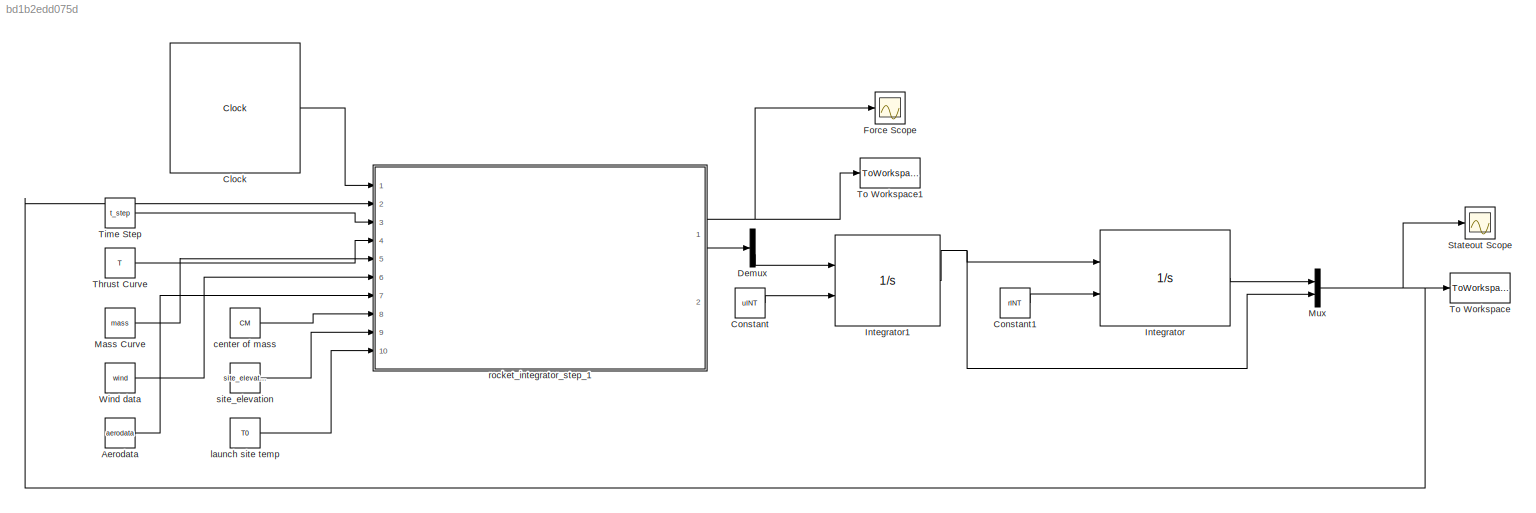
MODEL slx_bd1b2edd075d
KIND model
CONFIG AbsTol = 1e-9
CONFIG EnableMultiTasking = off
CONFIG FixedStep = 0.01
CONFIG MaxStep = 0.1
CONFIG MinStep = auto
CONFIG RelTol = 1e-6
CONFIG SampleTimeConstraint = Unconstrained
CONFIG Solver = VariableStepAuto
CONFIG SolverName = VariableStepAuto
CONFIG StartTime = 0.0
CONFIG StopTime = 80
BLOCK [Constant] Aerodata 
  Value = aerodata
BLOCK [Clock] Clock
  DisplayTime = on
BLOCK [Constant] Constant
  Value = uINT
BLOCK [Constant] Constant1
  Value = rINT
BLOCK [Demux] Demux
  DisplayOption = bar
  Outputs = 2
  Ports = [1, 2]
BLOCK [Scope] Force Scope 
  NumInputPorts = 1
  Ports = [1]
  ScopeSpecificationString = Simulink.scopes.TimeScopeBlockCfg('CurrentConfiguration', extmgr.ConfigurationSet(extmgr.Configuration('Core','General UI',true),extmgr.Configuration('Core','Source UI',true),extmgr.Configuration('Sources','WiredSimulink',true),extmgr.Configuration('Visuals','Time Domain',true,'SerializedDisplays',{struct('MinYLimReal','-1190.67629','MaxYLimReal','4244.81162','YLabelReal','','MinYLimMag','  0.0000...<+1372ch>
BLOCK [Integrator] Integrator
  InitialConditionSource = external
  Ports = [2, 1]
BLOCK [Integrator] Integrator1
  InitialConditionSource = external
  Ports = [2, 1]
BLOCK [Constant] Mass Curve
  Value = mass
BLOCK [Mux] Mux
  DisplayOption = bar
  Inputs = 2
  Ports = [2, 1]
BLOCK [Scope] Stateout Scope
  NumInputPorts = 1
  Ports = [1]
  ScopeSpecificationString = Simulink.scopes.TimeScopeBlockCfg('CurrentConfiguration', extmgr.ConfigurationSet(extmgr.Configuration('Core','General UI',true),extmgr.Configuration('Core','Source UI',true),extmgr.Configuration('Sources','WiredSimulink',true,'DataLoggingVariableName','ScopeData1'),extmgr.Configuration('Visuals','Time Domain',true,'SerializedDisplays',{struct('MinYLimReal','-1578.11867','MaxYLimReal','13507.3059'...<+1621ch>
BLOCK [Constant] Thrust Curve 
  Value = T
BLOCK [Constant] Time Step
  Value = t_step
BLOCK [ToWorkspace] To Workspace
  FixptAsFi = on
  MaxDataPoints = inf
  Ports = [1]
  SampleTime = -1
  Save2DSignal = 3-D array (concatenate along third dimension)
  VariableName = stateout
BLOCK [ToWorkspace] To Workspace1
  FixptAsFi = on
  MaxDataPoints = inf
  Ports = [1]
  SampleTime = -1
  Save2DSignal = 3-D array (concatenate along third dimension)
  VariableName = forceout
BLOCK [Constant] Wind data
  Value = wind
BLOCK [Constant] center of mass 
  Value = CM
BLOCK [Constant] launch site temp
  Value = T0
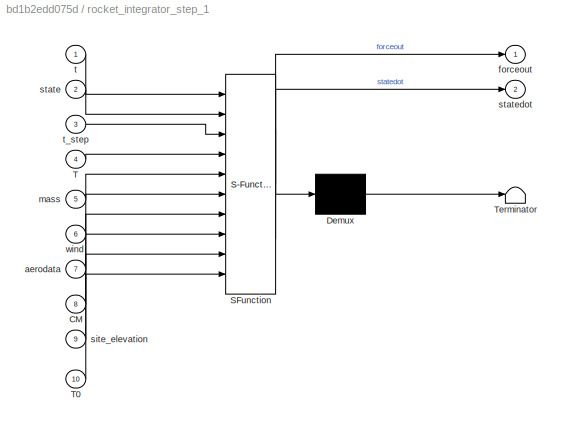
BLOCK [SubSystem] rocket_integrator_step_1 
  ErrorFcn = Stateflow.Translate.translate
  PermitHierarchicalResolution = ExplicitOnly
  Ports = [10, 2]
  RequestExecContextInheritance = off
  SFBlockType = MATLAB Function
  TreatAsAtomicUnit = on
  Variant = off
BLOCK [Demux] rocket_integrator_step_1 / Demux 
  Outputs = 1
  Ports = [1, 1]
BLOCK [S-Function] rocket_integrator_step_1 / SFunction 
  EnableBusSupport = on
  FunctionName = sf_sfun
  PortCounts = [10 3]
  Ports = [10, 3]
  SFcnIsStateOwnerBlock = off
  SFunctionDeploymentMode = off
  Tag = Stateflow S-Function solver_simulink 2
BLOCK [Terminator] rocket_integrator_step_1 / Terminator 
BLOCK [Inport] rocket_integrator_step_1 /CM
  IconDisplay = Port number
  Port = 8
BLOCK [Inport] rocket_integrator_step_1 /T
  IconDisplay = Port number
  Port = 4
BLOCK [Inport] rocket_integrator_step_1 /T0
  IconDisplay = Port number
  Port = 10
BLOCK [Inport] rocket_integrator_step_1 /aerodata
  IconDisplay = Port number
  Port = 7
BLOCK [Outport] rocket_integrator_step_1 /forceout
  IconDisplay = Port number
BLOCK [Inport] rocket_integrator_step_1 /mass
  IconDisplay = Port number
  Port = 5
BLOCK [Inport] rocket_integrator_step_1 /site_elevation
  IconDisplay = Port number
  Port = 9
BLOCK [Inport] rocket_integrator_step_1 /state
  IconDisplay = Port number
  Port = 2
BLOCK [Outport] rocket_integrator_step_1 /statedot
  IconDisplay = Port number
  Port = 2
BLOCK [Inport] rocket_integrator_step_1 /t
  IconDisplay = Port number
BLOCK [Inport] rocket_integrator_step_1 /t_step
  IconDisplay = Port number
  Port = 3
BLOCK [Inport] rocket_integrator_step_1 /wind
  IconDisplay = Port number
  Port = 6
BLOCK [Constant] site_elevation
  Value = site_elevation
LINE Aerodata :1 -> rocket_integrator_step_1 :7
LINE Clock:1 -> rocket_integrator_step_1 :1
LINE Constant1:1 -> Integrator:2
LINE Constant:1 -> Integrator1:2
LINE Demux:2 -> Integrator1:1
NET Integrator1:1 -> Integrator:1, Mux:2
LINE Integrator:1 -> Mux:1
LINE Mass Curve:1 -> rocket_integrator_step_1 :5
NET Mux:1 -> Stateout Scope:1, To Workspace:1, rocket_integrator_step_1 :2
LINE Thrust Curve :1 -> rocket_integrator_step_1 :4
LINE Time Step:1 -> rocket_integrator_step_1 :3
LINE Wind data:1 -> rocket_integrator_step_1 :6
LINE center of mass :1 -> rocket_integrator_step_1 :8
LINE launch site temp:1 -> rocket_integrator_step_1 :10
NET rocket_integrator_step_1 :1 -> Force Scope :1, To Workspace1:1
LINE rocket_integrator_step_1 :2 -> Demux:1
LINE site_elevation:1 -> rocket_integrator_step_1 :9
note: NET lines group one-source signal fan-out (src -> all destinations, sorted); 1:1 wires keep LINE
CHART rocket_integrator_step_1
 states=1 transitions=1
  STATE_LABEL 'eML_blk_kernel()'
  STATE_LABEL "SCRIPT:\nfunction [forceout, statedot] = dot(t, state, t_step, T, mass, wind, ...\n    aerodata, CM, site_elevation, T0)\n\n% avoid loading too many things. happens once each round of iterations\nworkspace = load('import2simulink.mat');\nrocket = workspace.rocket;\n\n% the fun part\nstatedot = zeros(6,1);      % initializes an empty vector\nstatedot(1:3) = state(4:6); % vx, vy, omega\n\n% lookup current mass ...<+768ch>"
